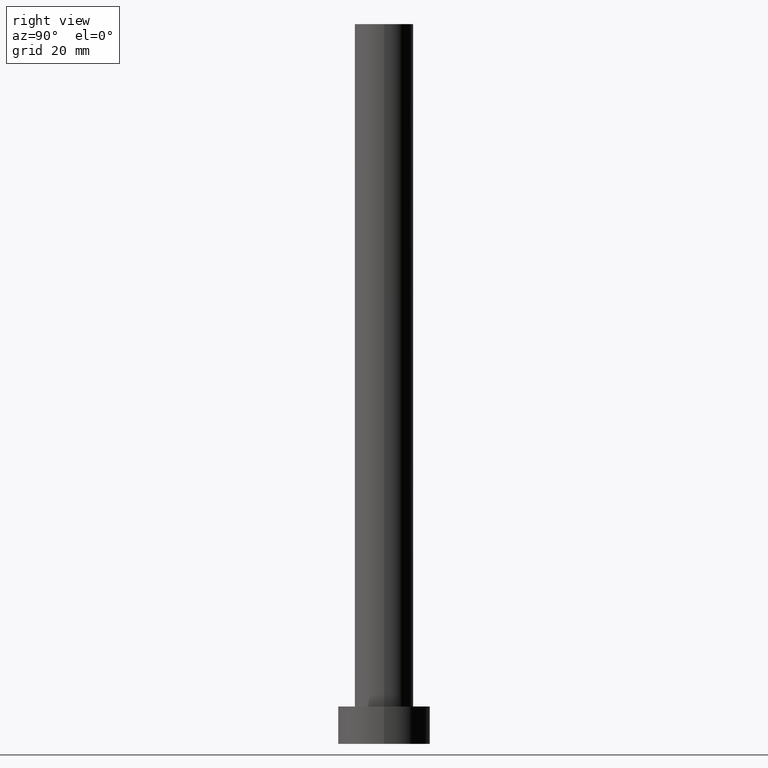
[diagram: clean part render]
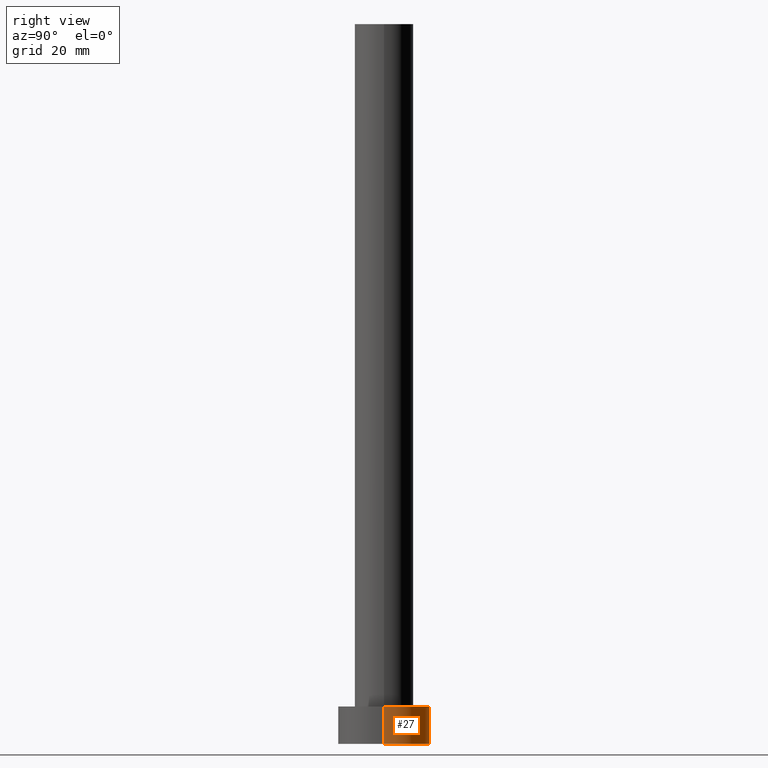
[diagram: same view with one face highlighted and labeled with its STEP entity id]
A machine part, right view. The second image highlights one B-rep face of the part: STEP entity #27.
In plain terms, the highlighted cylindrical surface (partial cylindrical patch) has radius 8 mm, axis along (-0, -0, -1).
Its self-contained STEP definition (entity closure, byte-faithful):
#2 = DIRECTION ( 'NONE',  ( -0.000000000000000000, -0.000000000000000000, -1.000000000000000000 ) ) ;
#8 = AXIS2_PLACEMENT_3D ( 'NONE', #24, #19, #171 ) ;
#19 = DIRECTION ( 'NONE',  ( 0.000000000000000000, 0.000000000000000000, 1.000000000000000000 ) ) ;
#24 = CARTESIAN_POINT ( 'NONE',  ( 0.000000000000000000, 0.000000000000000000, 0.000000000000000000 ) ) ;
#27 = ADVANCED_FACE ( 'NONE', ( #166 ), #146, .T. ) ;
#47 = AXIS2_PLACEMENT_3D ( 'NONE', #53, #127, #55 ) ;
#49 = EDGE_LOOP ( 'NONE', ( #114, #193, #164, #70 ) ) ;
#53 = CARTESIAN_POINT ( 'NONE',  ( 0.000000000000000000, 0.000000000000000000, 6.500000000000000000 ) ) ;
#55 = DIRECTION ( 'NONE',  ( -1.000000000000000000, 0.000000000000000000, 0.000000000000000000 ) ) ;
#56 = DIRECTION ( 'NONE',  ( -0.000000000000000000, -0.000000000000000000, -1.000000000000000000 ) ) ;
#61 = DIRECTION ( 'NONE',  ( 1.000000000000000000, 0.000000000000000000, 0.000000000000000000 ) ) ;
#70 = ORIENTED_EDGE ( 'NONE', *, *, #101, .F. ) ;
#77 = CARTESIAN_POINT ( 'NONE',  ( -8.000000000000000000, 0.000000000000000000, 6.500000000000000000 ) ) ;
#79 = LINE ( 'NONE', #212, #254 ) ;
#96 = VERTEX_POINT ( 'NONE', #170 ) ;
#101 = EDGE_CURVE ( 'NONE', #184, #124, #250, .T. ) ;
#114 = ORIENTED_EDGE ( 'NONE', *, *, #123, .F. ) ;
#123 = EDGE_CURVE ( 'NONE', #96, #184, #218, .T. ) ;
#124 = VERTEX_POINT ( 'NONE', #131 ) ;
#127 = DIRECTION ( 'NONE',  ( -0.000000000000000000, -0.000000000000000000, -1.000000000000000000 ) ) ;
#129 = CARTESIAN_POINT ( 'NONE',  ( 0.000000000000000000, 0.000000000000000000, 6.500000000000000000 ) ) ;
#131 = CARTESIAN_POINT ( 'NONE',  ( -8.000000000000000000, 0.000000000000000000, 0.000000000000000000 ) ) ;
#146 = CYLINDRICAL_SURFACE ( 'NONE', #47, 8.000000000000000000 ) ;
#151 = AXIS2_PLACEMENT_3D ( 'NONE', #129, #210, #61 ) ;
#156 = CIRCLE ( 'NONE', #8, 8.000000000000000000 ) ;
#164 = ORIENTED_EDGE ( 'NONE', *, *, #167, .T. ) ;
#166 = FACE_OUTER_BOUND ( 'NONE', #49, .T. ) ;
#167 = EDGE_CURVE ( 'NONE', #168, #124, #156, .T. ) ;
#168 = VERTEX_POINT ( 'NONE', #215 ) ;
#170 = CARTESIAN_POINT ( 'NONE',  ( 8.000000000000000000, 9.797174393178823685E-16, 6.500000000000000000 ) ) ;
#171 = DIRECTION ( 'NONE',  ( 1.000000000000000000, 0.000000000000000000, 0.000000000000000000 ) ) ;
#184 = VERTEX_POINT ( 'NONE', #251 ) ;
#193 = ORIENTED_EDGE ( 'NONE', *, *, #196, .T. ) ;
#196 = EDGE_CURVE ( 'NONE', #96, #168, #79, .T. ) ;
#199 = VECTOR ( 'NONE', #56, 1000.000000000000000 ) ;
#210 = DIRECTION ( 'NONE',  ( 0.000000000000000000, 0.000000000000000000, 1.000000000000000000 ) ) ;
#212 = CARTESIAN_POINT ( 'NONE',  ( 8.000000000000000000, 9.797174393178823685E-16, 6.500000000000000000 ) ) ;
#215 = CARTESIAN_POINT ( 'NONE',  ( 8.000000000000000000, 9.797174393178823685E-16, 0.000000000000000000 ) ) ;
#218 = CIRCLE ( 'NONE', #151, 8.000000000000000000 ) ;
#250 = LINE ( 'NONE', #77, #199 ) ;
#251 = CARTESIAN_POINT ( 'NONE',  ( -8.000000000000000000, 0.000000000000000000, 6.500000000000000000 ) ) ;
#254 = VECTOR ( 'NONE', #2, 1000.000000000000000 ) ;